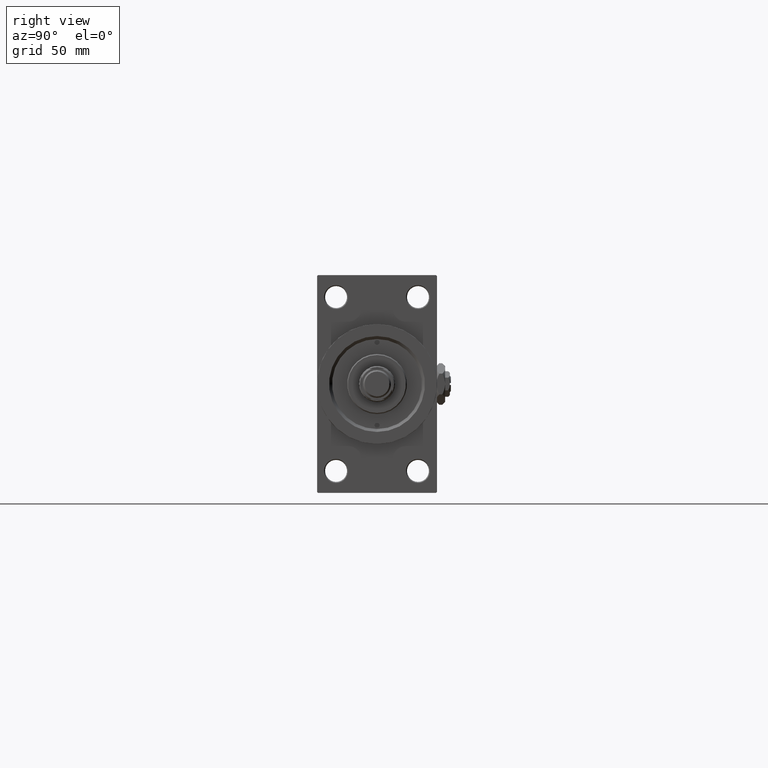
[diagram: clean part render]
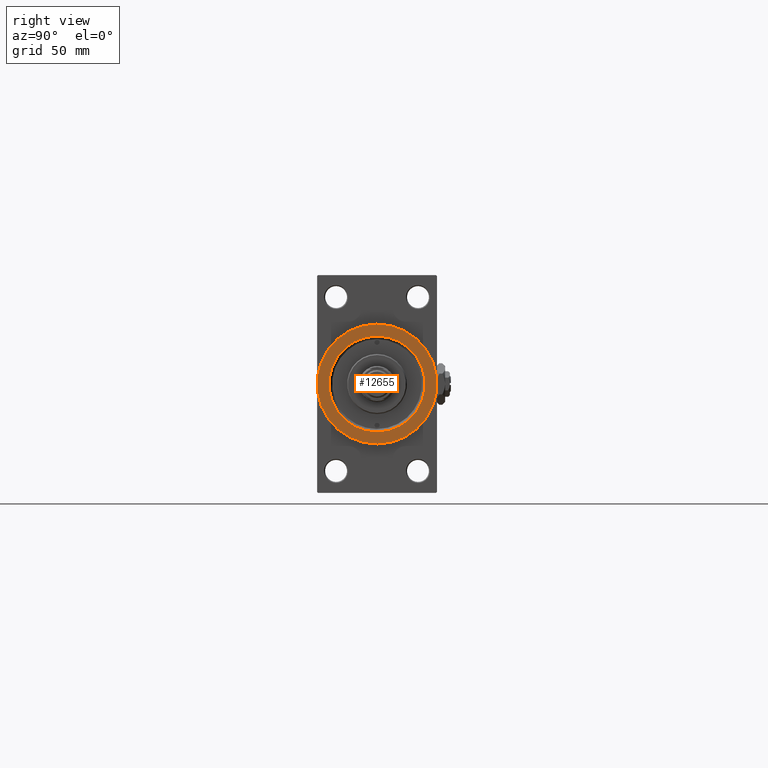
[diagram: same view with one face highlighted and labeled with its STEP entity id]
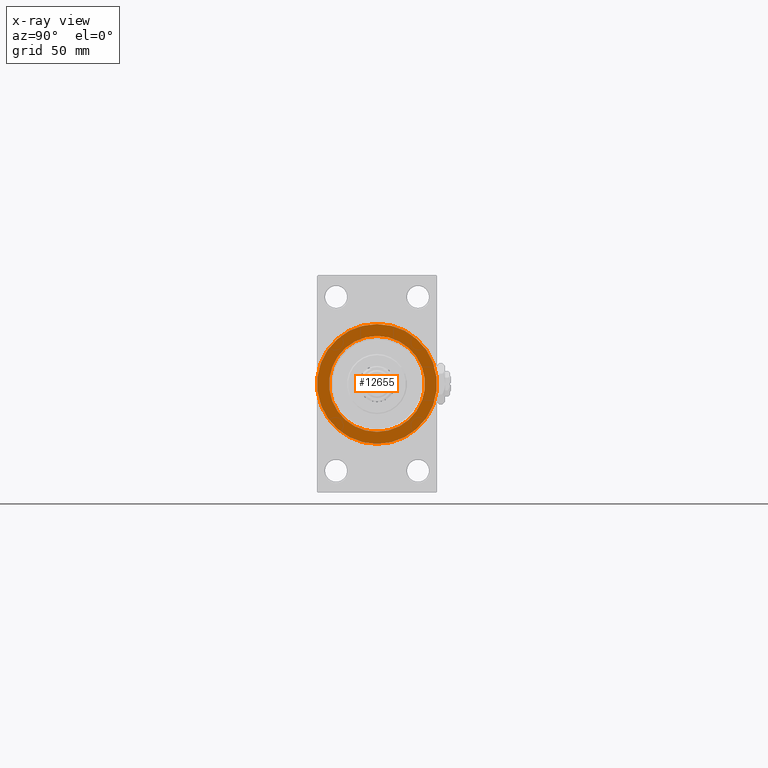
[diagram: x-ray of the same camera — body ghosted, the highlighted face saturated]
A machine part, right view. The second image highlights one B-rep face of the part: STEP entity #12655.
The next image is the same camera in x-ray: the body ghosted, the highlighted face saturated — about 0% of this face is hidden behind the body in this view.
In plain terms, the highlighted planar face has unit normal (1, 0, 0).
Its self-contained STEP definition (entity closure, byte-faithful):
#25 = VERTEX_POINT ( 'NONE', #10548 ) ;
#9075 = AXIS2_PLACEMENT_3D ( 'NONE', #37603, #33821, #30017 ) ;
#9597 = EDGE_CURVE ( 'NONE', #25, #17736, #15453, .T. ) ;
#10468 = DIRECTION ( 'NONE',  ( -1.000000000000000000, -0.000000000000000000, -0.000000000000000000 ) ) ;
#10548 = CARTESIAN_POINT ( 'NONE',  ( 288.0000000000000568, 0.000000000000000000, 30.00000000000000000 ) ) ;
#11431 = CIRCLE ( 'NONE', #27663, 23.99999999999996803 ) ;
#12655 = ADVANCED_FACE ( 'NONE', ( #21412, #25461 ), #40899, .T. ) ;
#13050 = AXIS2_PLACEMENT_3D ( 'NONE', #45095, #10468, #25624 ) ;
#14345 = AXIS2_PLACEMENT_3D ( 'NONE', #23297, #38736, #14723 ) ;
#14723 = DIRECTION ( 'NONE',  ( 0.000000000000000000, 0.000000000000000000, -1.000000000000000000 ) ) ;
#15453 = CIRCLE ( 'NONE', #27538, 30.00000000000000000 ) ;
#15554 = EDGE_LOOP ( 'NONE', ( #38973, #46656 ) ) ;
#17736 = VERTEX_POINT ( 'NONE', #32615 ) ;
#21412 = FACE_BOUND ( 'NONE', #44701, .T. ) ;
#23297 = CARTESIAN_POINT ( 'NONE',  ( 288.0000000000000568, 0.000000000000000000, 0.000000000000000000 ) ) ;
#23861 = CARTESIAN_POINT ( 'NONE',  ( 288.0000000000000568, 0.000000000000000000, 0.000000000000000000 ) ) ;
#24278 = CARTESIAN_POINT ( 'NONE',  ( 288.0000000000000568, 0.000000000000000000, 0.000000000000000000 ) ) ;
#25304 = VERTEX_POINT ( 'NONE', #31697 ) ;
#25461 = FACE_OUTER_BOUND ( 'NONE', #15554, .T. ) ;
#25561 = EDGE_CURVE ( 'NONE', #17736, #25, #30511, .T. ) ;
#25624 = DIRECTION ( 'NONE',  ( 0.000000000000000000, 0.000000000000000000, -1.000000000000000000 ) ) ;
#27538 = AXIS2_PLACEMENT_3D ( 'NONE', #23861, #39297, #43079 ) ;
#27663 = AXIS2_PLACEMENT_3D ( 'NONE', #24278, #47556, #31637 ) ;
#30017 = DIRECTION ( 'NONE',  ( 0.000000000000000000, 0.000000000000000000, -1.000000000000000000 ) ) ;
#30196 = EDGE_CURVE ( 'NONE', #33457, #25304, #11431, .T. ) ;
#30511 = CIRCLE ( 'NONE', #14345, 30.00000000000000000 ) ;
#30797 = CIRCLE ( 'NONE', #13050, 23.99999999999996803 ) ;
#31557 = EDGE_CURVE ( 'NONE', #25304, #33457, #30797, .T. ) ;
#31637 = DIRECTION ( 'NONE',  ( 0.000000000000000000, 0.000000000000000000, -1.000000000000000000 ) ) ;
#31697 = CARTESIAN_POINT ( 'NONE',  ( 288.0000000000000568, 2.939152317953643950E-15, 23.99999999999996803 ) ) ;
#32615 = CARTESIAN_POINT ( 'NONE',  ( 288.0000000000000568, 3.673940397442059178E-15, -30.00000000000000000 ) ) ;
#33457 = VERTEX_POINT ( 'NONE', #39827 ) ;
#33821 = DIRECTION ( 'NONE',  ( 1.000000000000000000, 0.000000000000000000, 0.000000000000000000 ) ) ;
#35403 = ORIENTED_EDGE ( 'NONE', *, *, #30196, .T. ) ;
#37603 = CARTESIAN_POINT ( 'NONE',  ( 288.0000000000000568, 0.000000000000000000, 0.000000000000000000 ) ) ;
#37878 = ORIENTED_EDGE ( 'NONE', *, *, #31557, .T. ) ;
#38736 = DIRECTION ( 'NONE',  ( 1.000000000000000000, 0.000000000000000000, 0.000000000000000000 ) ) ;
#38973 = ORIENTED_EDGE ( 'NONE', *, *, #9597, .T. ) ;
#39297 = DIRECTION ( 'NONE',  ( 1.000000000000000000, 0.000000000000000000, 0.000000000000000000 ) ) ;
#39827 = CARTESIAN_POINT ( 'NONE',  ( 288.0000000000000568, 0.000000000000000000, -23.99999999999996803 ) ) ;
#40899 = PLANE ( 'NONE',  #9075 ) ;
#43079 = DIRECTION ( 'NONE',  ( 0.000000000000000000, 0.000000000000000000, -1.000000000000000000 ) ) ;
#44701 = EDGE_LOOP ( 'NONE', ( #35403, #37878 ) ) ;
#45095 = CARTESIAN_POINT ( 'NONE',  ( 288.0000000000000568, 0.000000000000000000, 0.000000000000000000 ) ) ;
#46656 = ORIENTED_EDGE ( 'NONE', *, *, #25561, .T. ) ;
#47556 = DIRECTION ( 'NONE',  ( -1.000000000000000000, -0.000000000000000000, -0.000000000000000000 ) ) ;